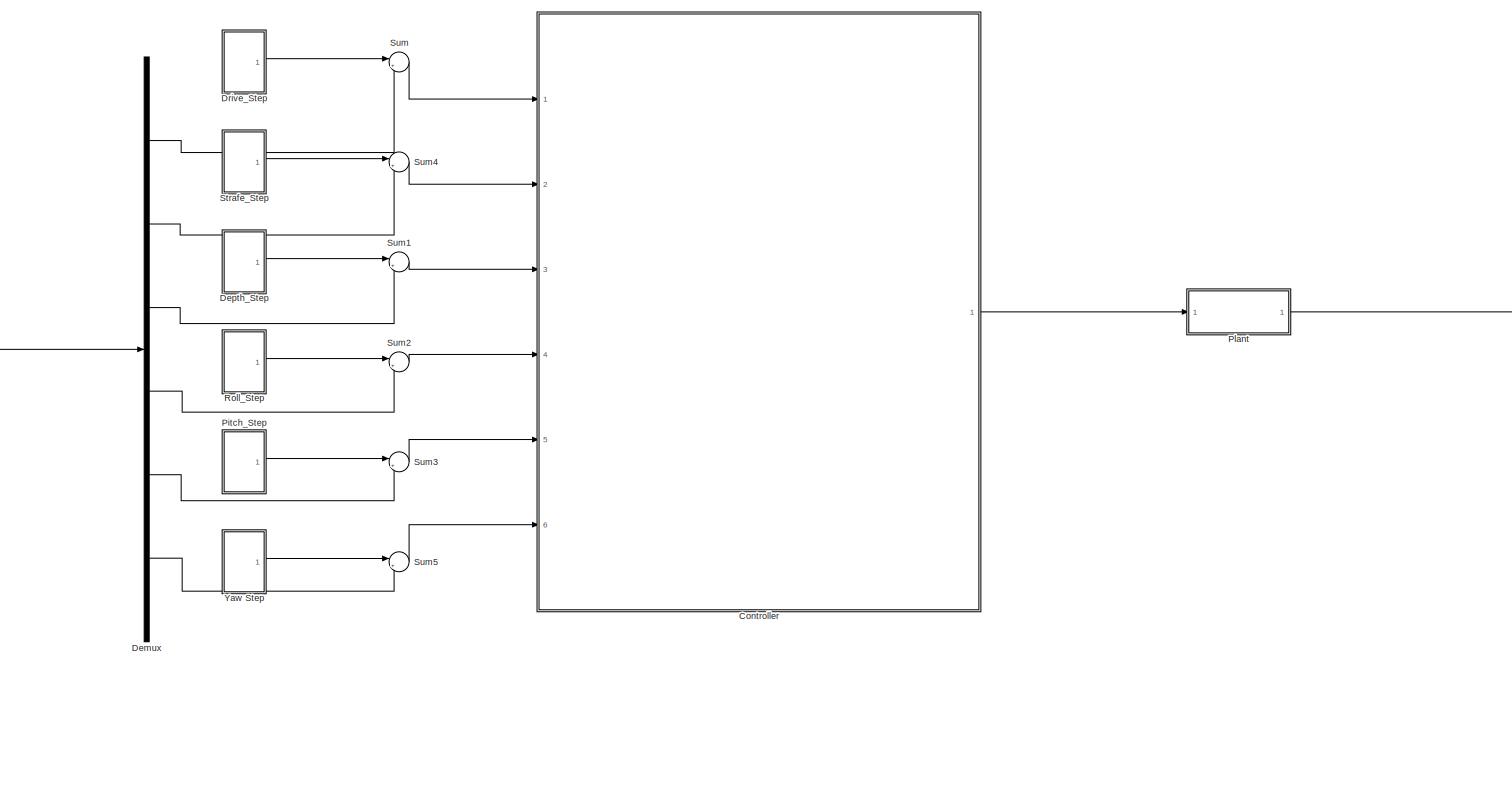
[diagram: root canvas - part 1/1, most of the canvas]
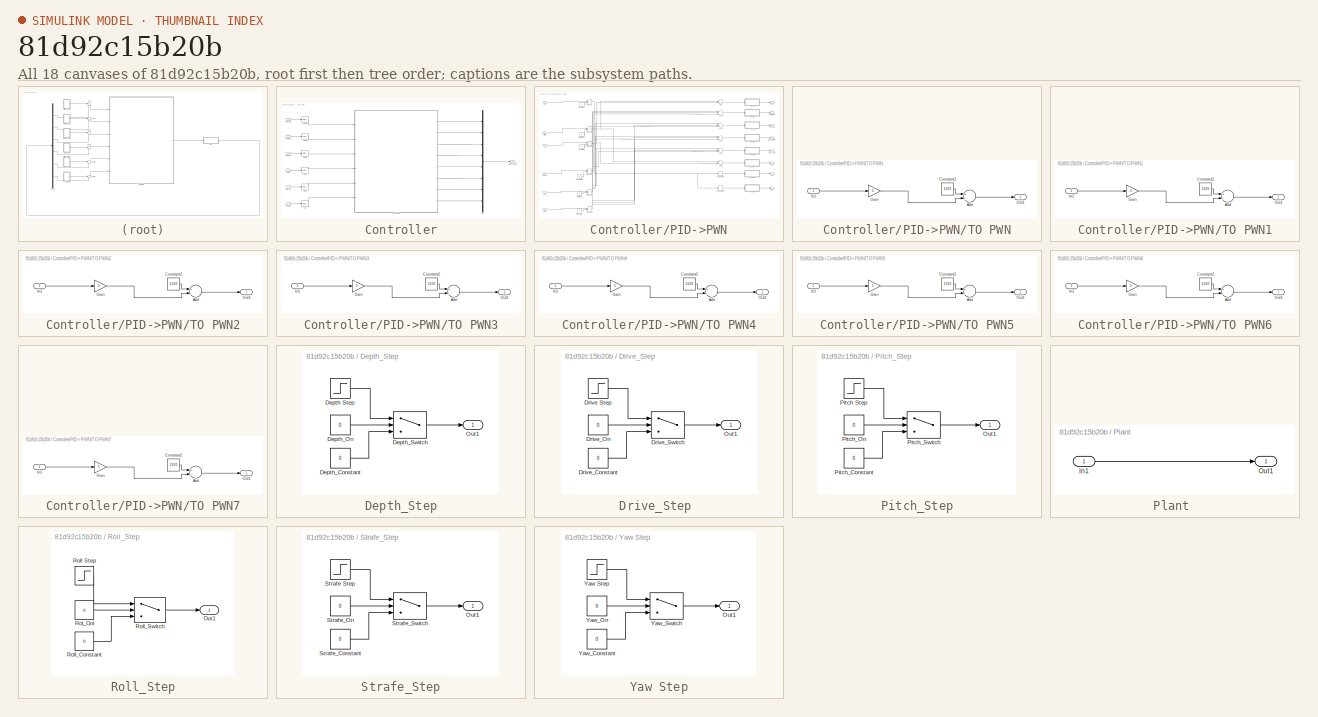
[diagram: thumbnail index - all 18 canvases of the model, root first then tree order]
MODEL slx_81d92c15b20b
KIND model
CONFIG AbsTol = auto
CONFIG EnableMultiTasking = off
CONFIG FixedStep = auto
CONFIG MaxStep = auto
CONFIG MinStep = auto
CONFIG RelTol = 1e-3
CONFIG SampleTimeConstraint = Unconstrained
CONFIG Solver = VariableStepAuto
CONFIG SolverName = VariableStepAuto
CONFIG StartTime = 0.0
CONFIG StopTime = 10.0
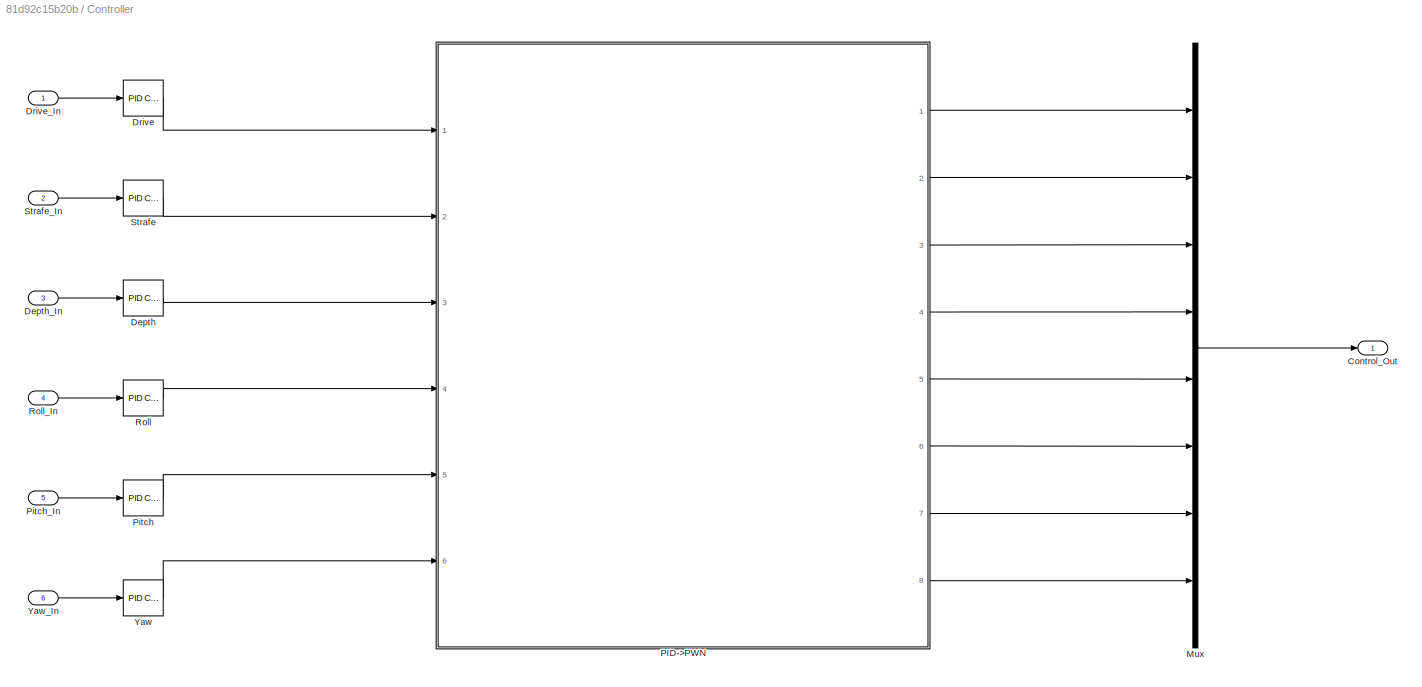
BLOCK [SubSystem] Controller
  Ports = [6, 1]
  RequestExecContextInheritance = off
  Variant = off
BLOCK [Outport] Controller/Control_Out
  IconDisplay = Port number
BLOCK [Reference] Controller/Depth  REF=simulink/Continuous/PID Controller
  Ports = [1, 1]
  SourceBlock = simulink/Continuous/PID Controller
  SourceProductBaseCode = SL
  SourceProductName = Simulink
  SourceType = PID 1dof
BLOCK [Inport] Controller/Depth_In
  IconDisplay = Port number
  Port = 3
BLOCK [Reference] Controller/Drive  REF=simulink/Continuous/PID Controller
  Ports = [1, 1]
  SourceBlock = simulink/Continuous/PID Controller
  SourceProductBaseCode = SL
  SourceProductName = Simulink
  SourceType = PID 1dof
BLOCK [Inport] Controller/Drive_In
  IconDisplay = Port number
BLOCK [Mux] Controller/Mux
  DisplayOption = bar
  Inputs = 8
  Ports = [8, 1]
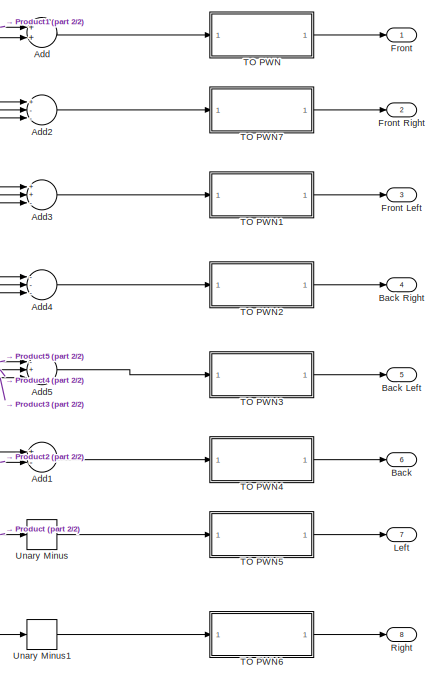
[diagram: Controller/PID->PWN - part 1/2, right side, full height]
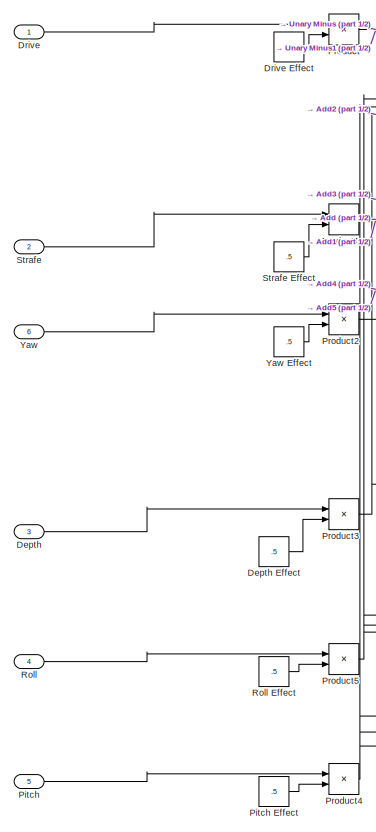
[diagram: Controller/PID->PWN - part 2/2, left side, full height]
BLOCK [SubSystem] Controller/PID->PWN
  Ports = [6, 8]
  RequestExecContextInheritance = off
  TreatAsAtomicUnit = on
  Variant = off
BLOCK [Sum] Controller/PID->PWN/Add
  InputSameDT = off
  OutDataTypeStr = Inherit: Inherit via internal rule
  Ports = [2, 1]
  SaturateOnIntegerOverflow = off
BLOCK [Sum] Controller/PID->PWN/Add1
  InputSameDT = off
  Inputs = +-
  OutDataTypeStr = Inherit: Inherit via internal rule
  Ports = [2, 1]
  SaturateOnIntegerOverflow = off
BLOCK [Sum] Controller/PID->PWN/Add2
  InputSameDT = off
  Inputs = +--
  OutDataTypeStr = Inherit: Inherit via internal rule
  Ports = [3, 1]
  SaturateOnIntegerOverflow = off
BLOCK [Sum] Controller/PID->PWN/Add3
  InputSameDT = off
  Inputs = ++-
  OutDataTypeStr = Inherit: Inherit via internal rule
  Ports = [3, 1]
  SaturateOnIntegerOverflow = off
BLOCK [Sum] Controller/PID->PWN/Add4
  InputSameDT = off
  Inputs = ---
  OutDataTypeStr = Inherit: Inherit via internal rule
  Ports = [3, 1]
  SaturateOnIntegerOverflow = off
BLOCK [Sum] Controller/PID->PWN/Add5
  InputSameDT = off
  Inputs = -+-
  OutDataTypeStr = Inherit: Inherit via internal rule
  Ports = [3, 1]
  SaturateOnIntegerOverflow = off
BLOCK [Outport] Controller/PID->PWN/Back
  IconDisplay = Port number
  Port = 6
BLOCK [Outport] Controller/PID->PWN/Back Left
  IconDisplay = Port number
  Port = 5
BLOCK [Outport] Controller/PID->PWN/Back Right
  IconDisplay = Port number
  Port = 4
BLOCK [Inport] Controller/PID->PWN/Depth
  IconDisplay = Port number
  Port = 3
BLOCK [Constant] Controller/PID->PWN/Depth Effect 
  Value = .5
BLOCK [Inport] Controller/PID->PWN/Drive
  IconDisplay = Port number
BLOCK [Constant] Controller/PID->PWN/Drive Effect 
BLOCK [Outport] Controller/PID->PWN/Front
  IconDisplay = Port number
BLOCK [Outport] Controller/PID->PWN/Front Left
  IconDisplay = Port number
  Port = 3
BLOCK [Outport] Controller/PID->PWN/Front Right
  IconDisplay = Port number
  Port = 2
BLOCK [Outport] Controller/PID->PWN/Left
  IconDisplay = Port number
  Port = 7
BLOCK [Inport] Controller/PID->PWN/Pitch
  IconDisplay = Port number
  Port = 5
BLOCK [Constant] Controller/PID->PWN/Pitch Effect
  Value = .5
BLOCK [Product] Controller/PID->PWN/Product
  InputSameDT = off
  OutDataTypeStr = Inherit: Inherit via internal rule
  Ports = [2, 1]
  RndMeth = Floor
  SaturateOnIntegerOverflow = off
BLOCK [Product] Controller/PID->PWN/Product1
  InputSameDT = off
  OutDataTypeStr = Inherit: Inherit via internal rule
  Ports = [2, 1]
  RndMeth = Floor
  SaturateOnIntegerOverflow = off
BLOCK [Product] Controller/PID->PWN/Product2
  InputSameDT = off
  OutDataTypeStr = Inherit: Inherit via internal rule
  Ports = [2, 1]
  RndMeth = Floor
  SaturateOnIntegerOverflow = off
BLOCK [Product] Controller/PID->PWN/Product3
  InputSameDT = off
  OutDataTypeStr = Inherit: Inherit via internal rule
  Ports = [2, 1]
  RndMeth = Floor
  SaturateOnIntegerOverflow = off
BLOCK [Product] Controller/PID->PWN/Product4
  InputSameDT = off
  OutDataTypeStr = Inherit: Inherit via internal rule
  Ports = [2, 1]
  RndMeth = Floor
  SaturateOnIntegerOverflow = off
BLOCK [Product] Controller/PID->PWN/Product5
  InputSameDT = off
  OutDataTypeStr = Inherit: Inherit via internal rule
  Ports = [2, 1]
  RndMeth = Floor
  SaturateOnIntegerOverflow = off
BLOCK [Outport] Controller/PID->PWN/Right
  IconDisplay = Port number
  Port = 8
BLOCK [Inport] Controller/PID->PWN/Roll
  IconDisplay = Port number
  Port = 4
BLOCK [Constant] Controller/PID->PWN/Roll Effect
  Value = .5
BLOCK [Inport] Controller/PID->PWN/Strafe
  IconDisplay = Port number
  Port = 2
BLOCK [Constant] Controller/PID->PWN/Strafe Effect 
  Value = .5
BLOCK [SubSystem] Controller/PID->PWN/TO PWN
  Ports = [1, 1]
  RequestExecContextInheritance = off
  Variant = off
BLOCK [Sum] Controller/PID->PWN/TO PWN/Add
  InputSameDT = off
  Inputs = +-
  OutDataTypeStr = Inherit: Inherit via internal rule
  Ports = [2, 1]
  SaturateOnIntegerOverflow = off
BLOCK [Constant] Controller/PID->PWN/TO PWN/Constant2
  Value = 1500
BLOCK [Gain] Controller/PID->PWN/TO PWN/Gain
  Gain = 5
  OutDataTypeStr = Inherit: Inherit via internal rule
  ParamDataTypeStr = Inherit: Inherit via internal rule
  SaturateOnIntegerOverflow = off
BLOCK [Inport] Controller/PID->PWN/TO PWN/In1
  IconDisplay = Port number
BLOCK [Outport] Controller/PID->PWN/TO PWN/Out1
  IconDisplay = Port number
BLOCK [SubSystem] Controller/PID->PWN/TO PWN1
  Ports = [1, 1]
  RequestExecContextInheritance = off
  Variant = off
BLOCK [Sum] Controller/PID->PWN/TO PWN1/Add
  InputSameDT = off
  Inputs = +-
  OutDataTypeStr = Inherit: Inherit via internal rule
  Ports = [2, 1]
  SaturateOnIntegerOverflow = off
BLOCK [Constant] Controller/PID->PWN/TO PWN1/Constant2
  Value = 1500
BLOCK [Gain] Controller/PID->PWN/TO PWN1/Gain
  Gain = 5
  OutDataTypeStr = Inherit: Inherit via internal rule
  ParamDataTypeStr = Inherit: Inherit via internal rule
  SaturateOnIntegerOverflow = off
BLOCK [Inport] Controller/PID->PWN/TO PWN1/In1
  IconDisplay = Port number
BLOCK [Outport] Controller/PID->PWN/TO PWN1/Out1
  IconDisplay = Port number
BLOCK [SubSystem] Controller/PID->PWN/TO PWN2
  Ports = [1, 1]
  RequestExecContextInheritance = off
  Variant = off
BLOCK [Sum] Controller/PID->PWN/TO PWN2/Add
  InputSameDT = off
  Inputs = +-
  OutDataTypeStr = Inherit: Inherit via internal rule
  Ports = [2, 1]
  SaturateOnIntegerOverflow = off
BLOCK [Constant] Controller/PID->PWN/TO PWN2/Constant2
  Value = 1500
BLOCK [Gain] Controller/PID->PWN/TO PWN2/Gain
  Gain = 5
  OutDataTypeStr = Inherit: Inherit via internal rule
  ParamDataTypeStr = Inherit: Inherit via internal rule
  SaturateOnIntegerOverflow = off
BLOCK [Inport] Controller/PID->PWN/TO PWN2/In1
  IconDisplay = Port number
BLOCK [Outport] Controller/PID->PWN/TO PWN2/Out1
  IconDisplay = Port number
BLOCK [SubSystem] Controller/PID->PWN/TO PWN3
  Ports = [1, 1]
  RequestExecContextInheritance = off
  Variant = off
BLOCK [Sum] Controller/PID->PWN/TO PWN3/Add
  InputSameDT = off
  Inputs = +-
  OutDataTypeStr = Inherit: Inherit via internal rule
  Ports = [2, 1]
  SaturateOnIntegerOverflow = off
BLOCK [Constant] Controller/PID->PWN/TO PWN3/Constant2
  Value = 1500
BLOCK [Gain] Controller/PID->PWN/TO PWN3/Gain
  Gain = 5
  OutDataTypeStr = Inherit: Inherit via internal rule
  ParamDataTypeStr = Inherit: Inherit via internal rule
  SaturateOnIntegerOverflow = off
BLOCK [Inport] Controller/PID->PWN/TO PWN3/In1
  IconDisplay = Port number
BLOCK [Outport] Controller/PID->PWN/TO PWN3/Out1
  IconDisplay = Port number
BLOCK [SubSystem] Controller/PID->PWN/TO PWN4
  Ports = [1, 1]
  RequestExecContextInheritance = off
  Variant = off
BLOCK [Sum] Controller/PID->PWN/TO PWN4/Add
  InputSameDT = off
  Inputs = +-
  OutDataTypeStr = Inherit: Inherit via internal rule
  Ports = [2, 1]
  SaturateOnIntegerOverflow = off
BLOCK [Constant] Controller/PID->PWN/TO PWN4/Constant2
  Value = 1500
BLOCK [Gain] Controller/PID->PWN/TO PWN4/Gain
  Gain = 5
  OutDataTypeStr = Inherit: Inherit via internal rule
  ParamDataTypeStr = Inherit: Inherit via internal rule
  SaturateOnIntegerOverflow = off
BLOCK [Inport] Controller/PID->PWN/TO PWN4/In1
  IconDisplay = Port number
BLOCK [Outport] Controller/PID->PWN/TO PWN4/Out1
  IconDisplay = Port number
BLOCK [SubSystem] Controller/PID->PWN/TO PWN5
  Ports = [1, 1]
  RequestExecContextInheritance = off
  Variant = off
BLOCK [Sum] Controller/PID->PWN/TO PWN5/Add
  InputSameDT = off
  Inputs = +-
  OutDataTypeStr = Inherit: Inherit via internal rule
  Ports = [2, 1]
  SaturateOnIntegerOverflow = off
BLOCK [Constant] Controller/PID->PWN/TO PWN5/Constant2
  Value = 1500
BLOCK [Gain] Controller/PID->PWN/TO PWN5/Gain
  Gain = 5
  OutDataTypeStr = Inherit: Inherit via internal rule
  ParamDataTypeStr = Inherit: Inherit via internal rule
  SaturateOnIntegerOverflow = off
BLOCK [Inport] Controller/PID->PWN/TO PWN5/In1
  IconDisplay = Port number
BLOCK [Outport] Controller/PID->PWN/TO PWN5/Out1
  IconDisplay = Port number
BLOCK [SubSystem] Controller/PID->PWN/TO PWN6
  Ports = [1, 1]
  RequestExecContextInheritance = off
  Variant = off
BLOCK [Sum] Controller/PID->PWN/TO PWN6/Add
  InputSameDT = off
  Inputs = +-
  OutDataTypeStr = Inherit: Inherit via internal rule
  Ports = [2, 1]
  SaturateOnIntegerOverflow = off
BLOCK [Constant] Controller/PID->PWN/TO PWN6/Constant2
  Value = 1500
BLOCK [Gain] Controller/PID->PWN/TO PWN6/Gain
  Gain = 5
  OutDataTypeStr = Inherit: Inherit via internal rule
  ParamDataTypeStr = Inherit: Inherit via internal rule
  SaturateOnIntegerOverflow = off
BLOCK [Inport] Controller/PID->PWN/TO PWN6/In1
  IconDisplay = Port number
BLOCK [Outport] Controller/PID->PWN/TO PWN6/Out1
  IconDisplay = Port number
BLOCK [SubSystem] Controller/PID->PWN/TO PWN7
  Ports = [1, 1]
  RequestExecContextInheritance = off
  Variant = off
BLOCK [Sum] Controller/PID->PWN/TO PWN7/Add
  InputSameDT = off
  Inputs = +-
  OutDataTypeStr = Inherit: Inherit via internal rule
  Ports = [2, 1]
  SaturateOnIntegerOverflow = off
BLOCK [Constant] Controller/PID->PWN/TO PWN7/Constant2
  Value = 1500
BLOCK [Gain] Controller/PID->PWN/TO PWN7/Gain
  Gain = 5
  OutDataTypeStr = Inherit: Inherit via internal rule
  ParamDataTypeStr = Inherit: Inherit via internal rule
  SaturateOnIntegerOverflow = off
BLOCK [Inport] Controller/PID->PWN/TO PWN7/In1
  IconDisplay = Port number
BLOCK [Outport] Controller/PID->PWN/TO PWN7/Out1
  IconDisplay = Port number
BLOCK [UnaryMinus] Controller/PID->PWN/Unary Minus
BLOCK [UnaryMinus] Controller/PID->PWN/Unary Minus1
BLOCK [Inport] Controller/PID->PWN/Yaw 
  IconDisplay = Port number
  Port = 6
BLOCK [Constant] Controller/PID->PWN/Yaw Effect 
  Value = .5
BLOCK [Reference] Controller/Pitch  REF=simulink/Continuous/PID Controller
  Ports = [1, 1]
  SourceBlock = simulink/Continuous/PID Controller
  SourceProductBaseCode = SL
  SourceProductName = Simulink
  SourceType = PID 1dof
BLOCK [Inport] Controller/Pitch_In
  IconDisplay = Port number
  Port = 5
BLOCK [Reference] Controller/Roll  REF=simulink/Continuous/PID Controller
  Ports = [1, 1]
  SourceBlock = simulink/Continuous/PID Controller
  SourceProductBaseCode = SL
  SourceProductName = Simulink
  SourceType = PID 1dof
BLOCK [Inport] Controller/Roll_In
  IconDisplay = Port number
  Port = 4
BLOCK [Reference] Controller/Strafe   REF=simulink/Continuous/PID Controller
  Ports = [1, 1]
  SourceBlock = simulink/Continuous/PID Controller
  SourceProductBaseCode = SL
  SourceProductName = Simulink
  SourceType = PID 1dof
BLOCK [Inport] Controller/Strafe_In
  IconDisplay = Port number
  Port = 2
BLOCK [Reference] Controller/Yaw   REF=simulink/Continuous/PID Controller
  Ports = [1, 1]
  SourceBlock = simulink/Continuous/PID Controller
  SourceProductBaseCode = SL
  SourceProductName = Simulink
  SourceType = PID 1dof
BLOCK [Inport] Controller/Yaw_In
  IconDisplay = Port number
  Port = 6
BLOCK [Demux] Demux
  DisplayOption = bar
  Outputs = 6
  Ports = [1, 6]
BLOCK [SubSystem] Depth_Step
  Ports = [0, 1]
  RequestExecContextInheritance = off
  Variant = off
BLOCK [Step] Depth_Step/Depth Step
  SampleTime = .1
BLOCK [Constant] Depth_Step/Depth_Constant
  Value = 0
BLOCK [Constant] Depth_Step/Depth_On
  Value = 0
BLOCK [Switch] Depth_Step/Depth_Switch
  Criteria = u2 ~= 0
  InputSameDT = off
  SaturateOnIntegerOverflow = off
  Threshold = 1
BLOCK [Outport] Depth_Step/Out1
  IconDisplay = Port number
BLOCK [SubSystem] Drive_Step 
  Ports = [0, 1]
  RequestExecContextInheritance = off
  Variant = off
BLOCK [Step] Drive_Step /Drive Step 
  SampleTime = .1
BLOCK [Constant] Drive_Step /Drive_Constant
  Value = 0
BLOCK [Constant] Drive_Step /Drive_On
  Value = 0
BLOCK [Switch] Drive_Step /Drive_Switch
  Criteria = u2 ~= 0
  InputSameDT = off
  SaturateOnIntegerOverflow = off
  Threshold = 1
BLOCK [Outport] Drive_Step /Out1
  IconDisplay = Port number
BLOCK [SubSystem] Pitch_Step
  Ports = [0, 1]
  RequestExecContextInheritance = off
  Variant = off
BLOCK [Outport] Pitch_Step/Out1
  IconDisplay = Port number
BLOCK [Step] Pitch_Step/Pitch Step
  SampleTime = .1
BLOCK [Constant] Pitch_Step/Pitch_Constant
  Value = 0
BLOCK [Constant] Pitch_Step/Pitch_On
  Value = 0
BLOCK [Switch] Pitch_Step/Pitch_Switch
  Criteria = u2 ~= 0
  InputSameDT = off
  SaturateOnIntegerOverflow = off
  Threshold = 1
BLOCK [SubSystem] Plant 
  Ports = [1, 1]
  RequestExecContextInheritance = off
  Variant = off
BLOCK [Inport] Plant /In1
  IconDisplay = Port number
BLOCK [Outport] Plant /Out1
  IconDisplay = Port number
BLOCK [SubSystem] Roll_Step
  Ports = [0, 1]
  RequestExecContextInheritance = off
  Variant = off
BLOCK [Outport] Roll_Step/Out1
  IconDisplay = Port number
BLOCK [Constant] Roll_Step/Rol_Onl
  Value = 0
BLOCK [Step] Roll_Step/Roll Step
  SampleTime = .1
BLOCK [Constant] Roll_Step/Roll_Constant
  Value = 0
BLOCK [Switch] Roll_Step/Roll_Switch
  Criteria = u2 ~= 0
  InputSameDT = off
  SaturateOnIntegerOverflow = off
  Threshold = 1
BLOCK [SubSystem] Strafe_Step
  Ports = [0, 1]
  RequestExecContextInheritance = off
  Variant = off
BLOCK [Outport] Strafe_Step/Out1
  IconDisplay = Port number
BLOCK [Step] Strafe_Step/Strafe Step
  SampleTime = .1
BLOCK [Constant] Strafe_Step/Strafe_Constant
  Value = 0
BLOCK [Constant] Strafe_Step/Strafe_On
  Value = 0
BLOCK [Switch] Strafe_Step/Strafe_Switch
  Criteria = u2 ~= 0
  InputSameDT = off
  SaturateOnIntegerOverflow = off
  Threshold = 1
BLOCK [Sum] Sum
  IconShape = round
  InputSameDT = off
  Inputs = |+-
  OutDataTypeStr = Inherit: Inherit via internal rule
  Ports = [2, 1]
  SaturateOnIntegerOverflow = off
BLOCK [Sum] Sum1
  IconShape = round
  InputSameDT = off
  Inputs = |+-
  OutDataTypeStr = Inherit: Inherit via internal rule
  Ports = [2, 1]
  SaturateOnIntegerOverflow = off
BLOCK [Sum] Sum2
  IconShape = round
  InputSameDT = off
  Inputs = |+-
  OutDataTypeStr = Inherit: Inherit via internal rule
  Ports = [2, 1]
  SaturateOnIntegerOverflow = off
BLOCK [Sum] Sum3
  IconShape = round
  InputSameDT = off
  Inputs = |+-
  OutDataTypeStr = Inherit: Inherit via internal rule
  Ports = [2, 1]
  SaturateOnIntegerOverflow = off
BLOCK [Sum] Sum4
  IconShape = round
  InputSameDT = off
  Inputs = |+-
  OutDataTypeStr = Inherit: Inherit via internal rule
  Ports = [2, 1]
  SaturateOnIntegerOverflow = off
BLOCK [Sum] Sum5
  IconShape = round
  InputSameDT = off
  Inputs = |+-
  OutDataTypeStr = Inherit: Inherit via internal rule
  Ports = [2, 1]
  SaturateOnIntegerOverflow = off
BLOCK [SubSystem] Yaw Step
  Ports = [0, 1]
  RequestExecContextInheritance = off
  Variant = off
BLOCK [Outport] Yaw Step/Out1
  IconDisplay = Port number
BLOCK [Step] Yaw Step/Yaw Step
  SampleTime = .1
BLOCK [Constant] Yaw Step/Yaw_Constant
  Value = 0
BLOCK [Constant] Yaw Step/Yaw_On
  Value = 0
BLOCK [Switch] Yaw Step/Yaw_Switch
  Criteria = u2 ~= 0
  InputSameDT = off
  SaturateOnIntegerOverflow = off
  Threshold = 1
LINE Controller/Depth:1 -> Controller/PID->PWN:3
LINE Controller/Depth_In:1 -> Controller/Depth:1
LINE Controller/Drive:1 -> Controller/PID->PWN:1
LINE Controller/Drive_In:1 -> Controller/Drive:1
LINE Controller/Mux:1 -> Controller/Control_Out:1
LINE Controller/PID->PWN/Add1:1 -> Controller/PID->PWN/TO PWN4:1
LINE Controller/PID->PWN/Add2:1 -> Controller/PID->PWN/TO PWN7:1
LINE Controller/PID->PWN/Add3:1 -> Controller/PID->PWN/TO PWN1:1
LINE Controller/PID->PWN/Add4:1 -> Controller/PID->PWN/TO PWN2:1
LINE Controller/PID->PWN/Add5:1 -> Controller/PID->PWN/TO PWN3:1
LINE Controller/PID->PWN/Add:1 -> Controller/PID->PWN/TO PWN:1
LINE Controller/PID->PWN/Depth Effect :1 -> Controller/PID->PWN/Product3:2
LINE Controller/PID->PWN/Depth:1 -> Controller/PID->PWN/Product3:1
LINE Controller/PID->PWN/Drive Effect :1 -> Controller/PID->PWN/Product:2
LINE Controller/PID->PWN/Drive:1 -> Controller/PID->PWN/Product:1
LINE Controller/PID->PWN/Pitch Effect:1 -> Controller/PID->PWN/Product4:2
LINE Controller/PID->PWN/Pitch:1 -> Controller/PID->PWN/Product4:1
NET Controller/PID->PWN/Product1:1 -> Controller/PID->PWN/Add1:1, Controller/PID->PWN/Add:1
NET Controller/PID->PWN/Product2:1 -> Controller/PID->PWN/Add1:2, Controller/PID->PWN/Add:2
NET Controller/PID->PWN/Product3:1 -> Controller/PID->PWN/Add2:3, Controller/PID->PWN/Add3:3, Controller/PID->PWN/Add4:3, Controller/PID->PWN/Add5:3
NET Controller/PID->PWN/Product4:1 -> Controller/PID->PWN/Add2:2, Controller/PID->PWN/Add3:2, Controller/PID->PWN/Add4:2, Controller/PID->PWN/Add5:2
NET Controller/PID->PWN/Product5:1 -> Controller/PID->PWN/Add2:1, Controller/PID->PWN/Add3:1, Controller/PID->PWN/Add4:1, Controller/PID->PWN/Add5:1
NET Controller/PID->PWN/Product:1 -> Controller/PID->PWN/Unary Minus1:1, Controller/PID->PWN/Unary Minus:1
LINE Controller/PID->PWN/Roll Effect:1 -> Controller/PID->PWN/Product5:2
LINE Controller/PID->PWN/Roll:1 -> Controller/PID->PWN/Product5:1
LINE Controller/PID->PWN/Strafe Effect :1 -> Controller/PID->PWN/Product1:2
LINE Controller/PID->PWN/Strafe:1 -> Controller/PID->PWN/Product1:1
LINE Controller/PID->PWN/TO PWN/Add:1 -> Controller/PID->PWN/TO PWN/Out1:1
LINE Controller/PID->PWN/TO PWN/Constant2:1 -> Controller/PID->PWN/TO PWN/Add:1
LINE Controller/PID->PWN/TO PWN/Gain:1 -> Controller/PID->PWN/TO PWN/Add:2
LINE Controller/PID->PWN/TO PWN/In1:1 -> Controller/PID->PWN/TO PWN/Gain:1
LINE Controller/PID->PWN/TO PWN1/Add:1 -> Controller/PID->PWN/TO PWN1/Out1:1
LINE Controller/PID->PWN/TO PWN1/Constant2:1 -> Controller/PID->PWN/TO PWN1/Add:1
LINE Controller/PID->PWN/TO PWN1/Gain:1 -> Controller/PID->PWN/TO PWN1/Add:2
LINE Controller/PID->PWN/TO PWN1/In1:1 -> Controller/PID->PWN/TO PWN1/Gain:1
LINE Controller/PID->PWN/TO PWN1:1 -> Controller/PID->PWN/Front Left:1
LINE Controller/PID->PWN/TO PWN2/Add:1 -> Controller/PID->PWN/TO PWN2/Out1:1
LINE Controller/PID->PWN/TO PWN2/Constant2:1 -> Controller/PID->PWN/TO PWN2/Add:1
LINE Controller/PID->PWN/TO PWN2/Gain:1 -> Controller/PID->PWN/TO PWN2/Add:2
LINE Controller/PID->PWN/TO PWN2/In1:1 -> Controller/PID->PWN/TO PWN2/Gain:1
LINE Controller/PID->PWN/TO PWN2:1 -> Controller/PID->PWN/Back Right:1
LINE Controller/PID->PWN/TO PWN3/Add:1 -> Controller/PID->PWN/TO PWN3/Out1:1
LINE Controller/PID->PWN/TO PWN3/Constant2:1 -> Controller/PID->PWN/TO PWN3/Add:1
LINE Controller/PID->PWN/TO PWN3/Gain:1 -> Controller/PID->PWN/TO PWN3/Add:2
LINE Controller/PID->PWN/TO PWN3/In1:1 -> Controller/PID->PWN/TO PWN3/Gain:1
LINE Controller/PID->PWN/TO PWN3:1 -> Controller/PID->PWN/Back Left:1
LINE Controller/PID->PWN/TO PWN4/Add:1 -> Controller/PID->PWN/TO PWN4/Out1:1
LINE Controller/PID->PWN/TO PWN4/Constant2:1 -> Controller/PID->PWN/TO PWN4/Add:1
LINE Controller/PID->PWN/TO PWN4/Gain:1 -> Controller/PID->PWN/TO PWN4/Add:2
LINE Controller/PID->PWN/TO PWN4/In1:1 -> Controller/PID->PWN/TO PWN4/Gain:1
LINE Controller/PID->PWN/TO PWN4:1 -> Controller/PID->PWN/Back:1
LINE Controller/PID->PWN/TO PWN5/Add:1 -> Controller/PID->PWN/TO PWN5/Out1:1
LINE Controller/PID->PWN/TO PWN5/Constant2:1 -> Controller/PID->PWN/TO PWN5/Add:1
LINE Controller/PID->PWN/TO PWN5/Gain:1 -> Controller/PID->PWN/TO PWN5/Add:2
LINE Controller/PID->PWN/TO PWN5/In1:1 -> Controller/PID->PWN/TO PWN5/Gain:1
LINE Controller/PID->PWN/TO PWN5:1 -> Controller/PID->PWN/Left:1
LINE Controller/PID->PWN/TO PWN6/Add:1 -> Controller/PID->PWN/TO PWN6/Out1:1
LINE Controller/PID->PWN/TO PWN6/Constant2:1 -> Controller/PID->PWN/TO PWN6/Add:1
LINE Controller/PID->PWN/TO PWN6/Gain:1 -> Controller/PID->PWN/TO PWN6/Add:2
LINE Controller/PID->PWN/TO PWN6/In1:1 -> Controller/PID->PWN/TO PWN6/Gain:1
LINE Controller/PID->PWN/TO PWN6:1 -> Controller/PID->PWN/Right:1
LINE Controller/PID->PWN/TO PWN7/Add:1 -> Controller/PID->PWN/TO PWN7/Out1:1
LINE Controller/PID->PWN/TO PWN7/Constant2:1 -> Controller/PID->PWN/TO PWN7/Add:1
LINE Controller/PID->PWN/TO PWN7/Gain:1 -> Controller/PID->PWN/TO PWN7/Add:2
LINE Controller/PID->PWN/TO PWN7/In1:1 -> Controller/PID->PWN/TO PWN7/Gain:1
LINE Controller/PID->PWN/TO PWN7:1 -> Controller/PID->PWN/Front Right:1
LINE Controller/PID->PWN/TO PWN:1 -> Controller/PID->PWN/Front:1
LINE Controller/PID->PWN/Unary Minus1:1 -> Controller/PID->PWN/TO PWN6:1
LINE Controller/PID->PWN/Unary Minus:1 -> Controller/PID->PWN/TO PWN5:1
LINE Controller/PID->PWN/Yaw :1 -> Controller/PID->PWN/Product2:1
LINE Controller/PID->PWN/Yaw Effect :1 -> Controller/PID->PWN/Product2:2
LINE Controller/PID->PWN:1 -> Controller/Mux:1
LINE Controller/PID->PWN:2 -> Controller/Mux:2
LINE Controller/PID->PWN:3 -> Controller/Mux:3
LINE Controller/PID->PWN:4 -> Controller/Mux:4
LINE Controller/PID->PWN:5 -> Controller/Mux:5
LINE Controller/PID->PWN:6 -> Controller/Mux:6
LINE Controller/PID->PWN:7 -> Controller/Mux:7
LINE Controller/PID->PWN:8 -> Controller/Mux:8
LINE Controller/Pitch:1 -> Controller/PID->PWN:5
LINE Controller/Pitch_In:1 -> Controller/Pitch:1
LINE Controller/Roll:1 -> Controller/PID->PWN:4
LINE Controller/Roll_In:1 -> Controller/Roll:1
LINE Controller/Strafe :1 -> Controller/PID->PWN:2
LINE Controller/Strafe_In:1 -> Controller/Strafe :1
LINE Controller/Yaw :1 -> Controller/PID->PWN:6
LINE Controller/Yaw_In:1 -> Controller/Yaw :1
LINE Controller:1 -> Plant :1
LINE Demux:1 -> Sum:2
LINE Demux:2 -> Sum4:2
LINE Demux:3 -> Sum1:2
LINE Demux:4 -> Sum2:2
LINE Demux:5 -> Sum3:2
LINE Demux:6 -> Sum5:2
LINE Depth_Step/Depth Step:1 -> Depth_Step/Depth_Switch:1
LINE Depth_Step/Depth_Constant:1 -> Depth_Step/Depth_Switch:3
LINE Depth_Step/Depth_On:1 -> Depth_Step/Depth_Switch:2
LINE Depth_Step/Depth_Switch:1 -> Depth_Step/Out1:1
LINE Depth_Step:1 -> Sum1:1
LINE Drive_Step /Drive Step :1 -> Drive_Step /Drive_Switch:1
LINE Drive_Step /Drive_Constant:1 -> Drive_Step /Drive_Switch:3
LINE Drive_Step /Drive_On:1 -> Drive_Step /Drive_Switch:2
LINE Drive_Step /Drive_Switch:1 -> Drive_Step /Out1:1
LINE Drive_Step :1 -> Sum:1
LINE Pitch_Step/Pitch Step:1 -> Pitch_Step/Pitch_Switch:1
LINE Pitch_Step/Pitch_Constant:1 -> Pitch_Step/Pitch_Switch:3
LINE Pitch_Step/Pitch_On:1 -> Pitch_Step/Pitch_Switch:2
LINE Pitch_Step/Pitch_Switch:1 -> Pitch_Step/Out1:1
LINE Pitch_Step:1 -> Sum3:1
LINE Plant /In1:1 -> Plant /Out1:1
LINE Plant :1 -> Demux:1
LINE Roll_Step/Rol_Onl:1 -> Roll_Step/Roll_Switch:2
LINE Roll_Step/Roll Step:1 -> Roll_Step/Roll_Switch:1
LINE Roll_Step/Roll_Constant:1 -> Roll_Step/Roll_Switch:3
LINE Roll_Step/Roll_Switch:1 -> Roll_Step/Out1:1
LINE Roll_Step:1 -> Sum2:1
LINE Strafe_Step/Strafe Step:1 -> Strafe_Step/Strafe_Switch:1
LINE Strafe_Step/Strafe_Constant:1 -> Strafe_Step/Strafe_Switch:3
LINE Strafe_Step/Strafe_On:1 -> Strafe_Step/Strafe_Switch:2
LINE Strafe_Step/Strafe_Switch:1 -> Strafe_Step/Out1:1
LINE Strafe_Step:1 -> Sum4:1
LINE Sum1:1 -> Controller:3
LINE Sum2:1 -> Controller:4
LINE Sum3:1 -> Controller:5
LINE Sum4:1 -> Controller:2
LINE Sum5:1 -> Controller:6
LINE Sum:1 -> Controller:1
LINE Yaw Step/Yaw Step:1 -> Yaw Step/Yaw_Switch:1
LINE Yaw Step/Yaw_Constant:1 -> Yaw Step/Yaw_Switch:3
LINE Yaw Step/Yaw_On:1 -> Yaw Step/Yaw_Switch:2
LINE Yaw Step/Yaw_Switch:1 -> Yaw Step/Out1:1
LINE Yaw Step:1 -> Sum5:1
note: NET lines group one-source signal fan-out (src -> all destinations, sorted); 1:1 wires keep LINE
